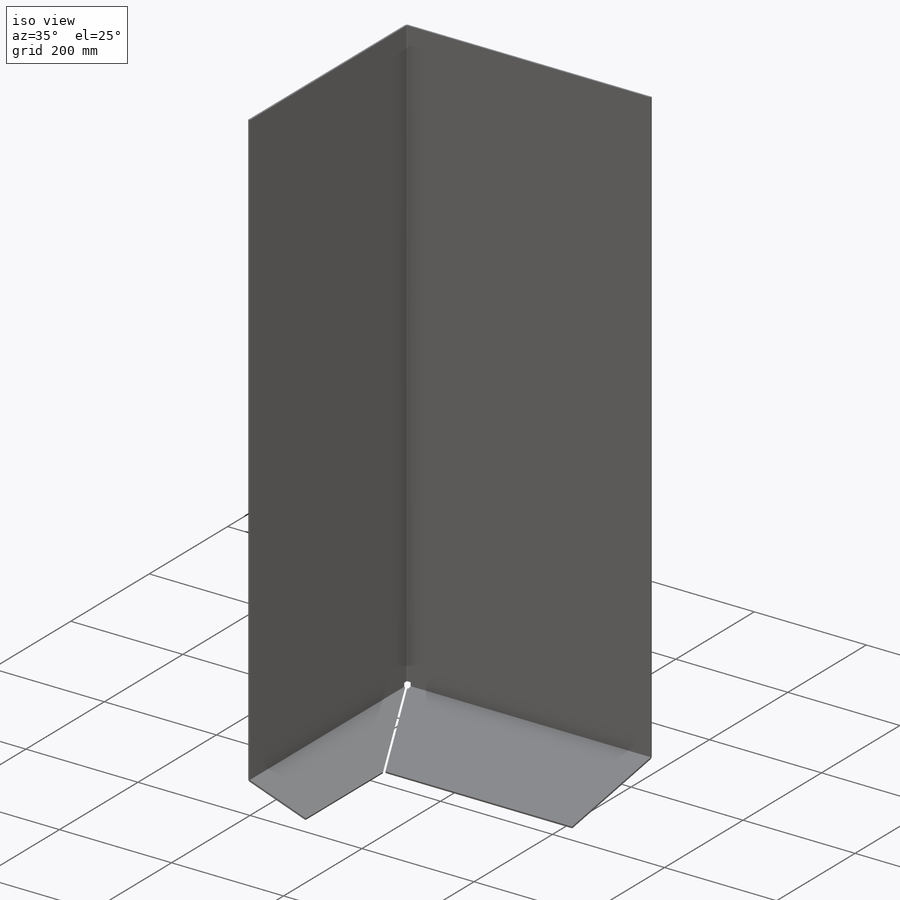
[diagram: iso view]
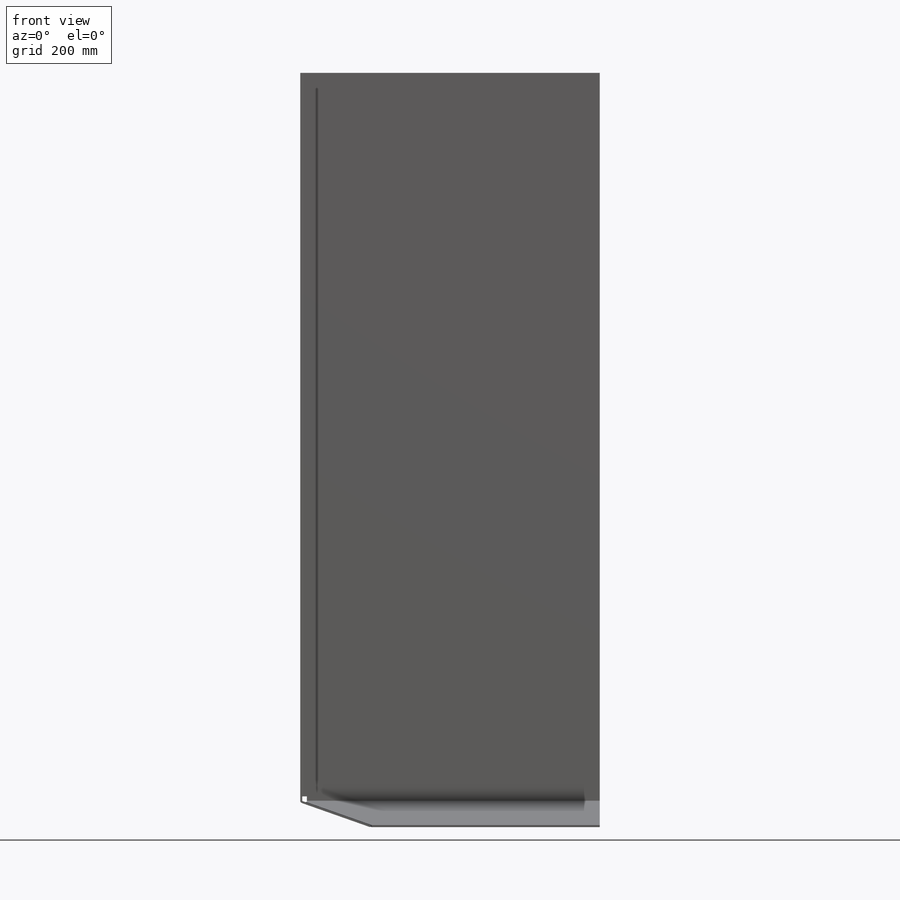
[diagram: front view]
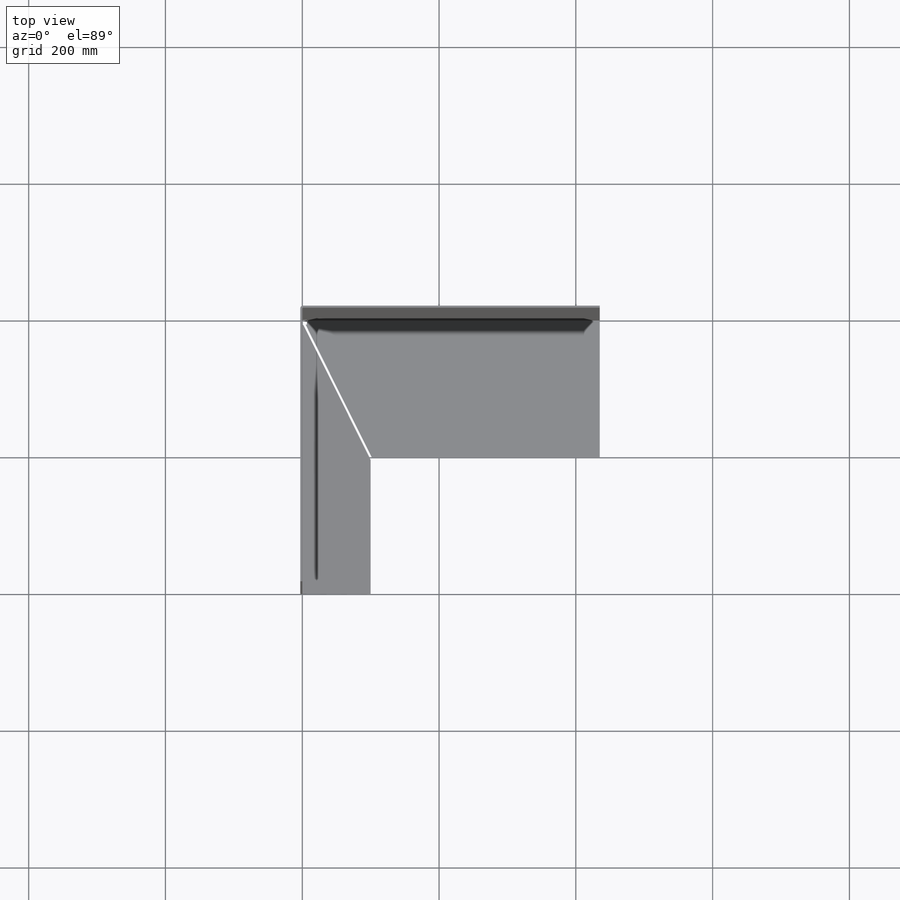
[diagram: top view]
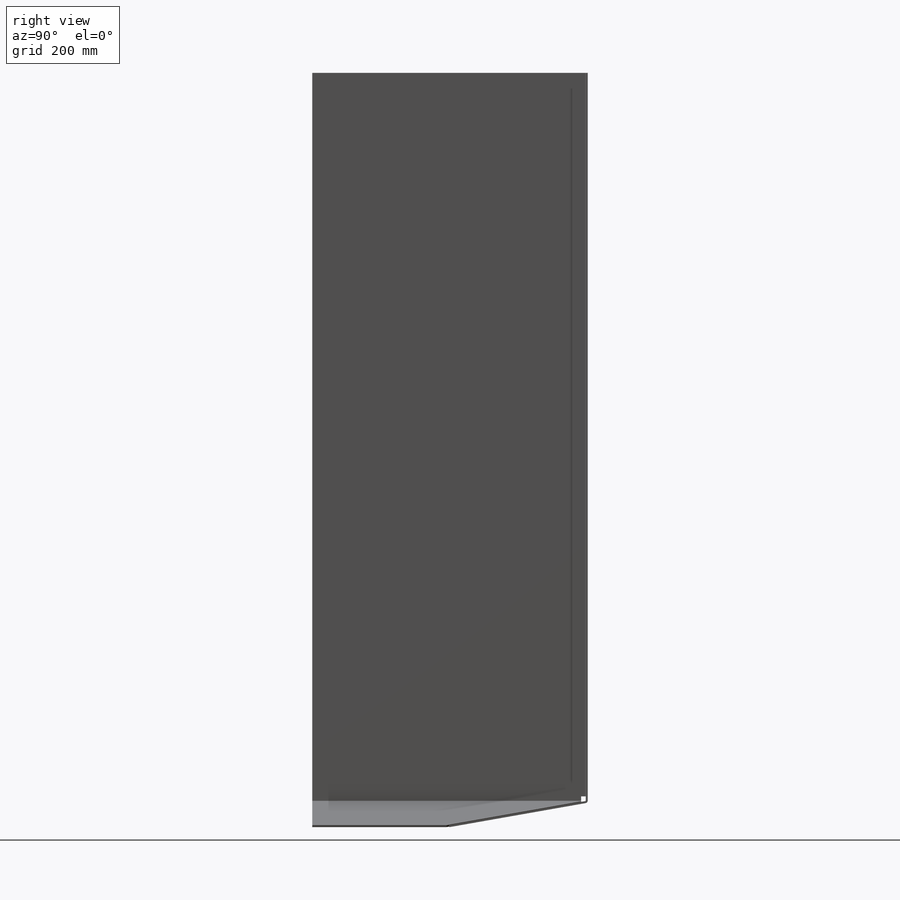
[diagram: right view]
SOLIDWORKS PART (.sldprt)
format: sldprt  version: not decoded by parser v0  size: 226,304 bytes
history: native  units: mm
features: sketch x5, plane x3, cut_extrude x2, material x1, extrude x1, shell x1, sheet_metal_op x1 + 3 further entries (+8 scaffold rows collapsed; 1 parser-record rows omitted)
feature tree (26):
  scaffold x8  (default folders/planes/origin — collapsed)
  material  "Material <nicht festgelegt>"
  plane  "Vorderansicht"
  plane  "Draufsicht"
  plane  "Seitenansicht"
  sketch  "Skizze1"  dims[D1=400.0mm D2=435.0mm]
  extrude  "Aufsatz-Linear austragen1"  Depth=1100mm
  sketch  "Skizze2"  dims[c1.D1=200.0mm c1.D2=200.0mm c2.D2=10.0deg]
  cut_extrude  "Schnitt-Linear austragen1"  [1 undecoded]
  sketch  "Skizze4"  dims[D1=100.0mm]
  cut_extrude  "Schnitt-Linear austragen2"  [1 undecoded]
  shell  "Wandung1"  Thickness=3mm
  sheet_metal_op  "Blech1"  Biegung-Winkel8=0 Biegung-Winkel9=0
  "Abwicklung4"
  sketch  "Biegung-Linien4"
  sketch  "Rahmen4"
  "Abwickeln-<Biegung-Winkel8>1"
  "Abwickeln-<Biegung-Winkel9>1"
  parser-record x1  (decoder bookkeeping rows leaked as tree rows — omitted from the tree; the rows remain in map.json)
decode coverage: 6 of 10 modeling features carry decoded parameters; 3 rows unclassified (native names shown)
note: 2 parameter values undecoded
note: suppression state not decoded; provenance and decode notes live in map.json
